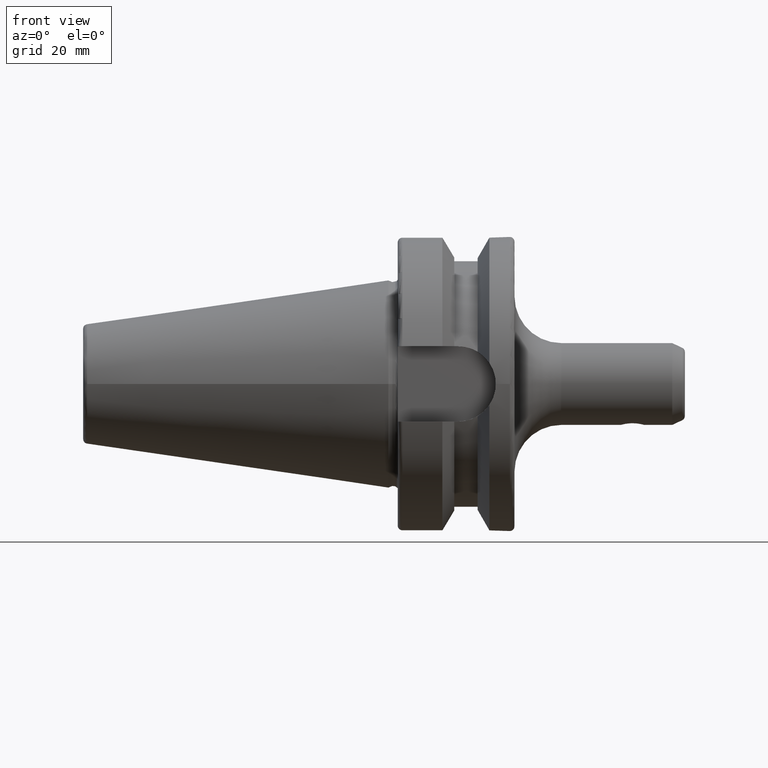
[diagram: clean part render]
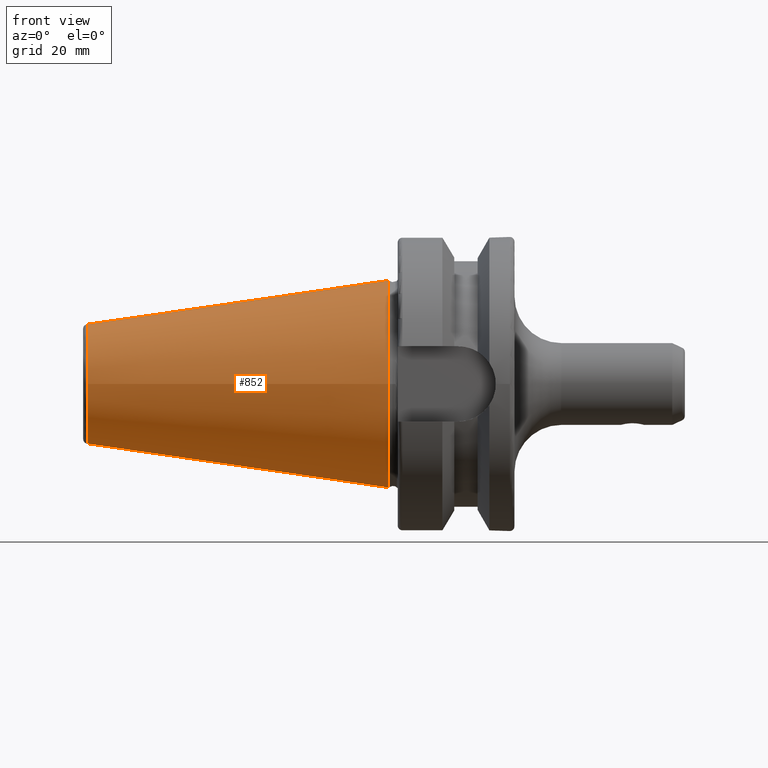
[diagram: same view with one face highlighted and labeled with its STEP entity id]
A machine part, front view. The second image highlights one B-rep face of the part: STEP entity #852.
In plain terms, the highlighted conical surface has half-angle 8.297 deg.
Its self-contained STEP definition (entity closure, byte-faithful):
#41=CONICAL_SURFACE('',#961,17.5186442890469,0.144812498238939);
#92=CIRCLE('',#957,12.8122885780937);
#93=CIRCLE('',#958,12.8122885780937);
#96=CIRCLE('',#962,22.225);
#165=FACE_OUTER_BOUND('',#220,.T.);
#220=EDGE_LOOP('',(#737,#738,#739,#740,#741));
#302=LINE('',#1779,#350);
#350=VECTOR('',#1183,17.5186442890469);
#423=VERTEX_POINT('',#1769);
#424=VERTEX_POINT('',#1770);
#426=VERTEX_POINT('',#1777);
#534=EDGE_CURVE('',#423,#424,#92,.T.);
#535=EDGE_CURVE('',#424,#423,#93,.T.);
#538=EDGE_CURVE('',#426,#426,#96,.T.);
#539=EDGE_CURVE('',#426,#423,#302,.T.);
#737=ORIENTED_EDGE('',*,*,#538,.F.);
#738=ORIENTED_EDGE('',*,*,#539,.T.);
#739=ORIENTED_EDGE('',*,*,#534,.T.);
#740=ORIENTED_EDGE('',*,*,#535,.T.);
#741=ORIENTED_EDGE('',*,*,#539,.F.);
#852=ADVANCED_FACE('',(#165),#41,.T.);
#957=AXIS2_PLACEMENT_3D('',#1771,#1171,#1172);
#958=AXIS2_PLACEMENT_3D('',#1772,#1173,#1174);
#961=AXIS2_PLACEMENT_3D('',#1776,#1179,#1180);
#962=AXIS2_PLACEMENT_3D('',#1778,#1181,#1182);
#1171=DIRECTION('center_axis',(1.,0.,0.));
#1172=DIRECTION('ref_axis',(0.,0.,-1.));
#1173=DIRECTION('center_axis',(1.,0.,0.));
#1174=DIRECTION('ref_axis',(0.,0.,-1.));
#1179=DIRECTION('center_axis',(1.,0.,0.));
#1180=DIRECTION('ref_axis',(0.,1.,0.));
#1181=DIRECTION('center_axis',(1.,0.,0.));
#1182=DIRECTION('ref_axis',(0.,0.,-1.));
#1183=DIRECTION('',(-0.989532981063282,0.144306893071729,1.76724974695192E-17));
#1769=CARTESIAN_POINT('',(-64.5443068930717,-12.8122885780937,-1.56905281969147E-15));
#1770=CARTESIAN_POINT('',(-64.5443068930717,-1.56905281969147E-15,12.8122885780937));
#1771=CARTESIAN_POINT('Origin',(-64.5443068930717,0.,0.));
#1772=CARTESIAN_POINT('Origin',(-64.5443068930717,0.,0.));
#1776=CARTESIAN_POINT('Origin',(-32.2721534465359,0.,0.));
#1777=CARTESIAN_POINT('',(4.44089209850063E-15,-22.225,-2.72177751110499E-15));
#1778=CARTESIAN_POINT('Origin',(0.,0.,0.));
#1779=CARTESIAN_POINT('',(-32.2721534465359,-17.5186442890469,-2.14541516539823E-15));